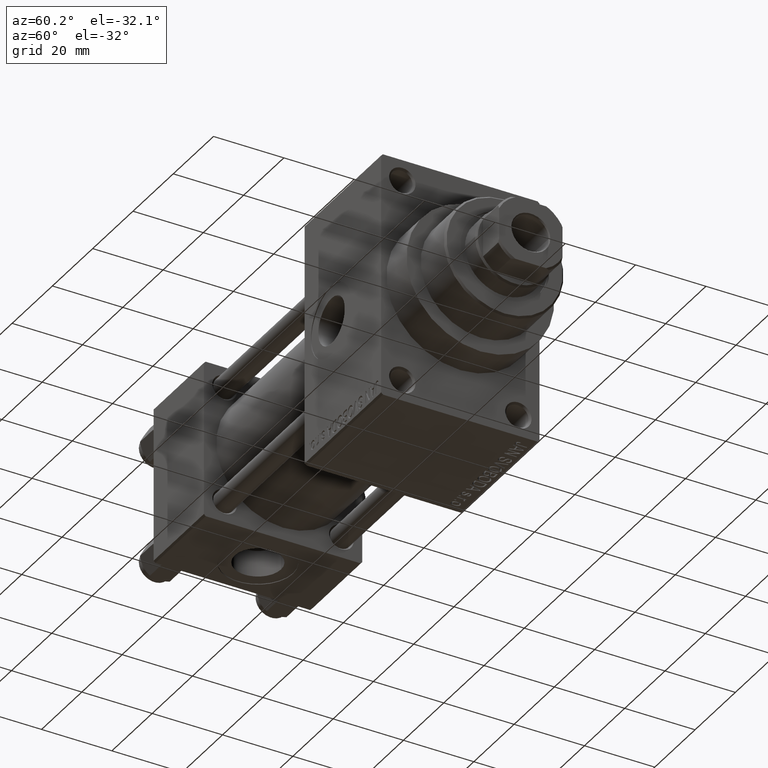
[diagram: clean part render]
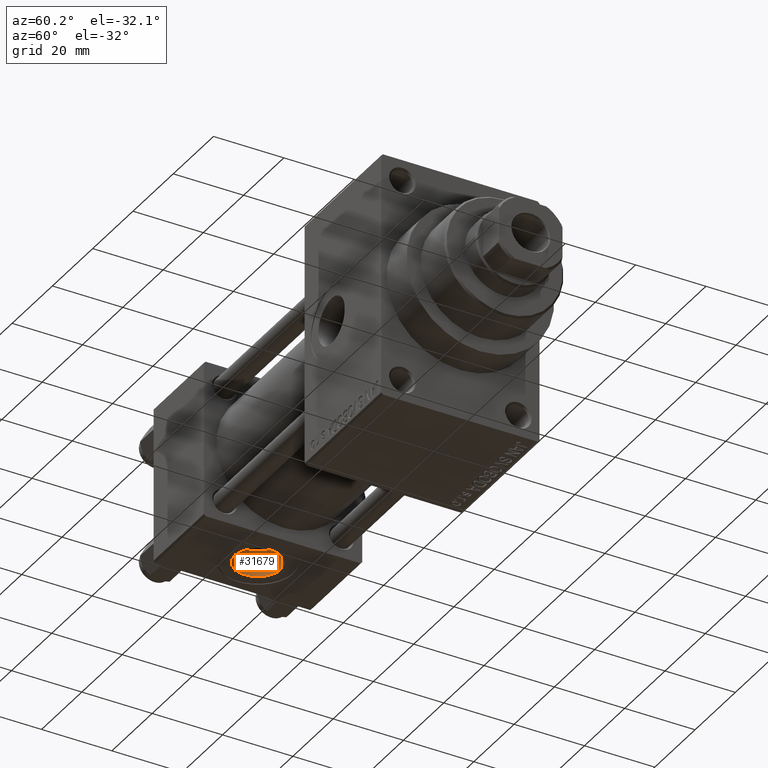
[diagram: same view with one face highlighted and labeled with its STEP entity id]
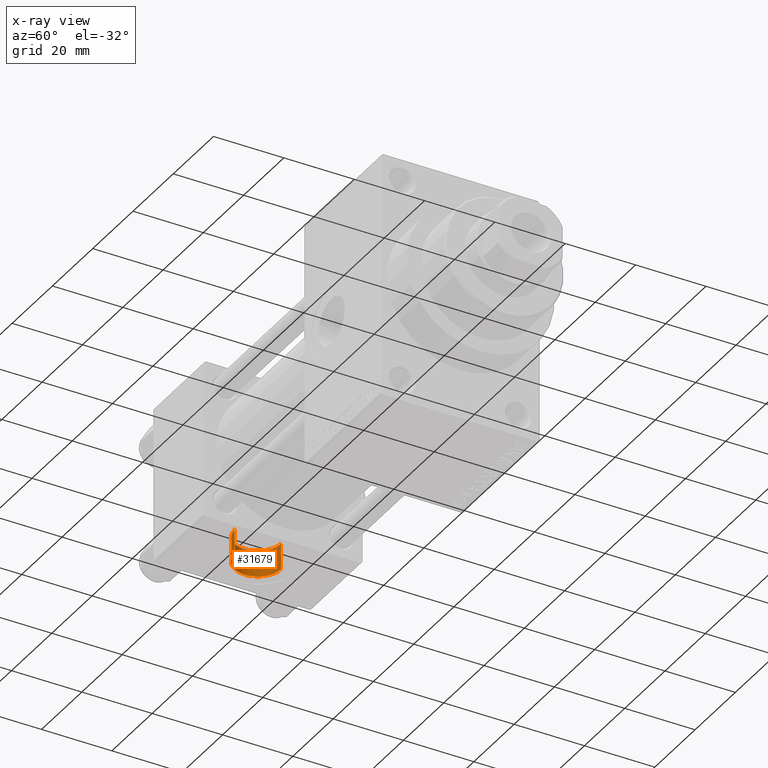
[diagram: x-ray of the same camera — body ghosted, the highlighted face saturated]
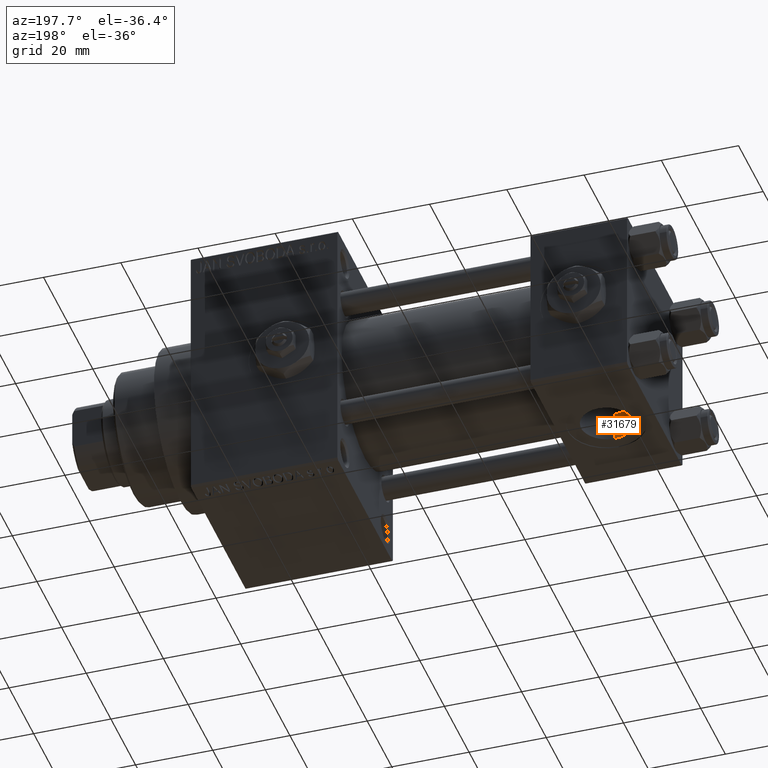
[diagram: same view with one face highlighted and labeled with its STEP entity id]
A machine part, auxiliary view. The second image highlights one B-rep face of the part: STEP entity #31679.
The next image is the same camera in x-ray: the body ghosted, the highlighted face saturated — about 0% of this face is hidden behind the body in this view.
A second angle (auxiliary view) of the same face is appended — the face is thin or edge-on in the first view.
In plain terms, the highlighted cylindrical surface (edge-blend (fillet) strip) has radius 6.58 mm, axis along (-0, -0, -1).
Its self-contained STEP definition (entity closure, byte-faithful):
#2650 = CARTESIAN_POINT ( 'NONE',  ( 12.50000000000000178, -6.579999999999997407, -22.30000000000000071 ) ) ;
#4613 = DIRECTION ( 'NONE',  ( -0.000000000000000000, -1.734723475976806848E-16, -1.000000000000000000 ) ) ;
#4700 = AXIS2_PLACEMENT_3D ( 'NONE', #5742, #13454, #21130 ) ;
#5742 = CARTESIAN_POINT ( 'NONE',  ( 12.50000000000000178, 4.894858899557613338E-15, -14.84000000000000163 ) ) ;
#7737 = EDGE_CURVE ( 'NONE', #48213, #9777, #12855, .T. ) ;
#9777 = VERTEX_POINT ( 'NONE', #33539 ) ;
#9974 = DIRECTION ( 'NONE',  ( 0.000000000000000000, 1.000000000000000000, -2.636357866226150465E-16 ) ) ;
#10188 = DIRECTION ( 'NONE',  ( 0.000000000000000000, 1.000000000000000000, 0.000000000000000000 ) ) ;
#11944 = ORIENTED_EDGE ( 'NONE', *, *, #7737, .F. ) ;
#12855 = LINE ( 'NONE', #46625, #36558 ) ;
#13454 = DIRECTION ( 'NONE',  ( -0.000000000000000000, 1.734723475976806355E-16, 1.000000000000000000 ) ) ;
#14558 = CARTESIAN_POINT ( 'NONE',  ( 12.50000000000000178, -6.579999999999994742, -14.84000000000000163 ) ) ;
#15935 = CARTESIAN_POINT ( 'NONE',  ( 12.50000000000000178, 6.580000000000005400, -14.84000000000000341 ) ) ;
#16396 = AXIS2_PLACEMENT_3D ( 'NONE', #25308, #24808, #10188 ) ;
#17083 = VERTEX_POINT ( 'NONE', #2650 ) ;
#18873 = AXIS2_PLACEMENT_3D ( 'NONE', #25341, #28081, #9974 ) ;
#21130 = DIRECTION ( 'NONE',  ( 0.000000000000000000, 1.000000000000000000, -2.636357866226150465E-16 ) ) ;
#21512 = VECTOR ( 'NONE', #4613, 1000.000000000000000 ) ;
#24808 = DIRECTION ( 'NONE',  ( 0.000000000000000000, -1.734723475976806848E-16, -1.000000000000000000 ) ) ;
#25308 = CARTESIAN_POINT ( 'NONE',  ( 12.50000000000000178, 3.600755186478916035E-15, -22.30000000000000071 ) ) ;
#25341 = CARTESIAN_POINT ( 'NONE',  ( 12.50000000000000178, 5.439562071014330766E-15, -11.70000000000000107 ) ) ;
#25605 = EDGE_CURVE ( 'NONE', #17083, #9777, #45768, .T. ) ;
#27697 = LINE ( 'NONE', #34429, #21512 ) ;
#28081 = DIRECTION ( 'NONE',  ( -0.000000000000000000, -1.734723475976806848E-16, -1.000000000000000000 ) ) ;
#31679 = ADVANCED_FACE ( 'NONE', ( #40018 ), #43488, .F. ) ;
#31961 = DIRECTION ( 'NONE',  ( -0.000000000000000000, -1.734723475976806848E-16, -1.000000000000000000 ) ) ;
#33303 = ORIENTED_EDGE ( 'NONE', *, *, #35508, .T. ) ;
#33539 = CARTESIAN_POINT ( 'NONE',  ( 12.50000000000000178, 6.580000000000003624, -22.30000000000000071 ) ) ;
#34127 = ORIENTED_EDGE ( 'NONE', *, *, #36624, .T. ) ;
#34429 = CARTESIAN_POINT ( 'NONE',  ( 12.50000000000000178, -6.579999999999994742, -11.69999999999999929 ) ) ;
#35508 = EDGE_CURVE ( 'NONE', #48213, #46869, #43591, .T. ) ;
#36558 = VECTOR ( 'NONE', #31961, 1000.000000000000000 ) ;
#36624 = EDGE_CURVE ( 'NONE', #46869, #17083, #27697, .T. ) ;
#40018 = FACE_OUTER_BOUND ( 'NONE', #41175, .T. ) ;
#41175 = EDGE_LOOP ( 'NONE', ( #33303, #34127, #45685, #11944 ) ) ;
#43488 = CYLINDRICAL_SURFACE ( 'NONE', #18873, 6.580000000000000071 ) ;
#43591 = CIRCLE ( 'NONE', #4700, 6.580000000000000071 ) ;
#45685 = ORIENTED_EDGE ( 'NONE', *, *, #25605, .T. ) ;
#45768 = CIRCLE ( 'NONE', #16396, 6.580000000000000071 ) ;
#46625 = CARTESIAN_POINT ( 'NONE',  ( 12.50000000000000178, 6.580000000000005400, -11.70000000000000284 ) ) ;
#46869 = VERTEX_POINT ( 'NONE', #14558 ) ;
#48213 = VERTEX_POINT ( 'NONE', #15935 ) ;